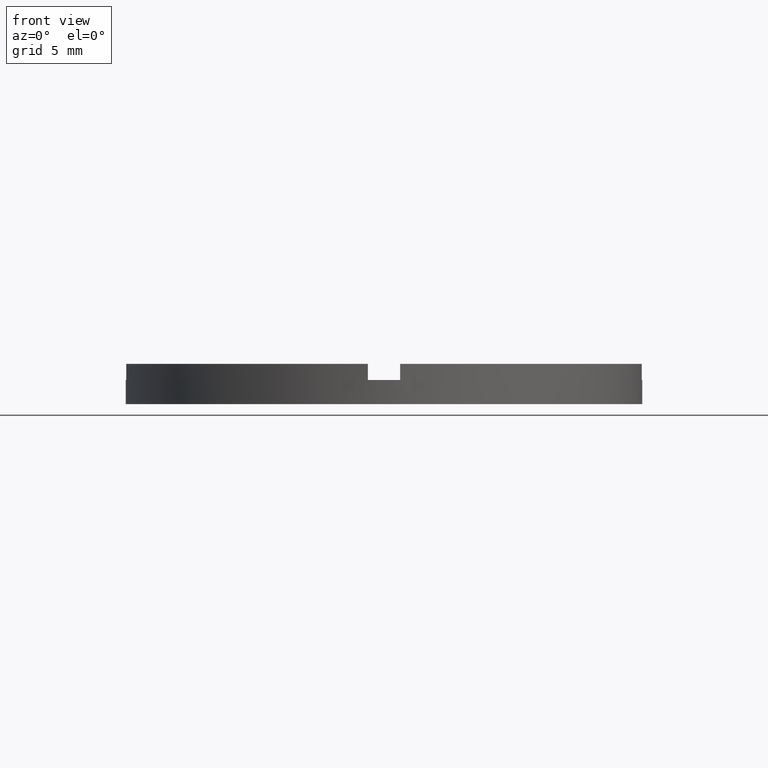
[diagram: clean part render]
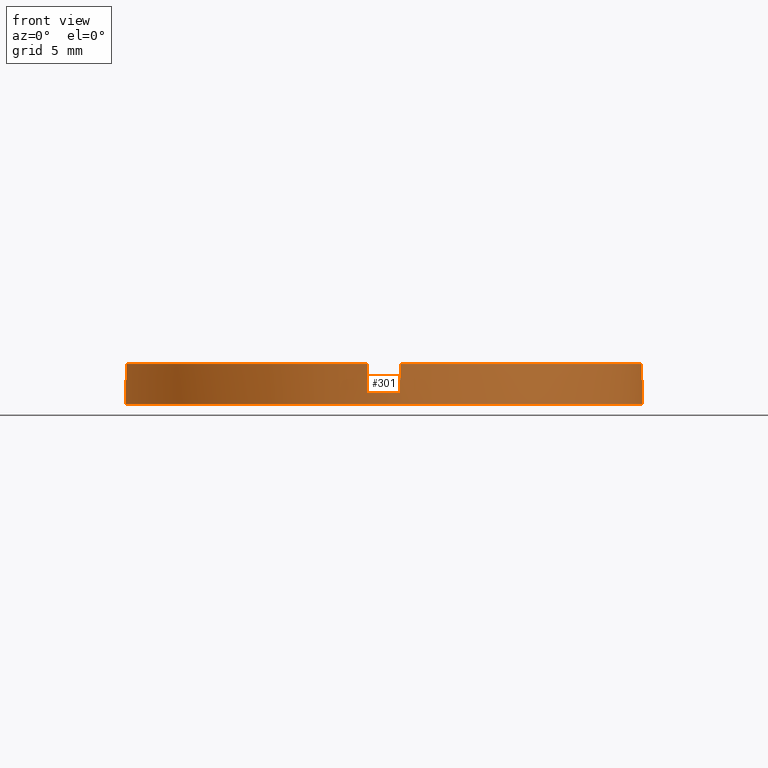
[diagram: same view with one face highlighted and labeled with its STEP entity id]
A machine part, front view. The second image highlights one B-rep face of the part: STEP entity #301.
In plain terms, the highlighted cylindrical surface (partial cylindrical patch) has radius 16 mm, axis along (-0, -0, -1).
Its self-contained STEP definition (entity closure, byte-faithful):
#8 = CARTESIAN_POINT ( 'NONE',  ( 16.00000000000000000, 1.959434878635765131E-15, 1.500000000000000000 ) ) ;
#13 = DIRECTION ( 'NONE',  ( 1.000000000000000000, 0.000000000000000000, 0.000000000000000000 ) ) ;
#16 = CARTESIAN_POINT ( 'NONE',  ( 0.9999999999998373523, -15.96871942267132383, 2.500000000000000000 ) ) ;
#22 = EDGE_CURVE ( 'NONE', #681, #363, #626, .T. ) ;
#30 = DIRECTION ( 'NONE',  ( -0.000000000000000000, -0.000000000000000000, -1.000000000000000000 ) ) ;
#32 = AXIS2_PLACEMENT_3D ( 'NONE', #555, #538, #324 ) ;
#51 = DIRECTION ( 'NONE',  ( 0.000000000000000000, 0.000000000000000000, 1.000000000000000000 ) ) ;
#58 = DIRECTION ( 'NONE',  ( -0.000000000000000000, 0.000000000000000000, 1.000000000000000000 ) ) ;
#59 = CARTESIAN_POINT ( 'NONE',  ( 0.9999999999998373523, -15.96871942267132383, 2.500000000000000000 ) ) ;
#64 = AXIS2_PLACEMENT_3D ( 'NONE', #413, #514, #13 ) ;
#66 = EDGE_CURVE ( 'NONE', #484, #672, #451, .T. ) ;
#67 = CARTESIAN_POINT ( 'NONE',  ( 16.00000000000000000, 1.959434878635765131E-15, 2.500000000000000000 ) ) ;
#70 = DIRECTION ( 'NONE',  ( 0.000000000000000000, 0.000000000000000000, 1.000000000000000000 ) ) ;
#74 = VECTOR ( 'NONE', #596, 1000.000000000000000 ) ;
#77 = DIRECTION ( 'NONE',  ( -1.000000000000000000, 0.000000000000000000, 0.000000000000000000 ) ) ;
#81 = CARTESIAN_POINT ( 'NONE',  ( -15.96871942267130962, -1.000000000000023315, 2.500000000000000000 ) ) ;
#96 = VECTOR ( 'NONE', #51, 1000.000000000000000 ) ;
#97 = LINE ( 'NONE', #400, #635 ) ;
#102 = DIRECTION ( 'NONE',  ( 0.000000000000000000, 0.000000000000000000, 1.000000000000000000 ) ) ;
#106 = EDGE_CURVE ( 'NONE', #337, #330, #97, .T. ) ;
#109 = ORIENTED_EDGE ( 'NONE', *, *, #601, .T. ) ;
#119 = VERTEX_POINT ( 'NONE', #509 ) ;
#138 = ORIENTED_EDGE ( 'NONE', *, *, #22, .T. ) ;
#143 = CIRCLE ( 'NONE', #242, 16.00000000000000000 ) ;
#148 = ORIENTED_EDGE ( 'NONE', *, *, #239, .F. ) ;
#151 = LINE ( 'NONE', #67, #422 ) ;
#152 = VERTEX_POINT ( 'NONE', #693 ) ;
#161 = DIRECTION ( 'NONE',  ( 1.000000000000000000, 0.000000000000000000, 0.000000000000000000 ) ) ;
#164 = FACE_OUTER_BOUND ( 'NONE', #623, .T. ) ;
#176 = ORIENTED_EDGE ( 'NONE', *, *, #66, .F. ) ;
#179 = VERTEX_POINT ( 'NONE', #549 ) ;
#196 = CARTESIAN_POINT ( 'NONE',  ( 15.96871942267130429, -1.000000000000159206, 2.500000000000000000 ) ) ;
#224 = ORIENTED_EDGE ( 'NONE', *, *, #231, .F. ) ;
#231 = EDGE_CURVE ( 'NONE', #337, #363, #355, .T. ) ;
#233 = DIRECTION ( 'NONE',  ( -0.000000000000000000, -0.000000000000000000, -1.000000000000000000 ) ) ;
#239 = EDGE_CURVE ( 'NONE', #408, #494, #143, .T. ) ;
#242 = AXIS2_PLACEMENT_3D ( 'NONE', #279, #102, #525 ) ;
#256 = DIRECTION ( 'NONE',  ( 0.000000000000000000, 0.000000000000000000, 1.000000000000000000 ) ) ;
#257 = AXIS2_PLACEMENT_3D ( 'NONE', #334, #256, #436 ) ;
#272 = CARTESIAN_POINT ( 'NONE',  ( 0.000000000000000000, 0.000000000000000000, 2.500000000000000000 ) ) ;
#279 = CARTESIAN_POINT ( 'NONE',  ( 0.000000000000000000, 0.000000000000000000, 1.500000000000000000 ) ) ;
#297 = CARTESIAN_POINT ( 'NONE',  ( -16.00000000000000000, 0.000000000000000000, 0.000000000000000000 ) ) ;
#301 = ADVANCED_FACE ( 'NONE', ( #164 ), #705, .T. ) ;
#315 = CARTESIAN_POINT ( 'NONE',  ( 15.96871942267130429, -1.000000000000159206, 2.500000000000000000 ) ) ;
#324 = DIRECTION ( 'NONE',  ( 1.000000000000000000, 0.000000000000000000, 0.000000000000000000 ) ) ;
#325 = AXIS2_PLACEMENT_3D ( 'NONE', #272, #70, #161 ) ;
#330 = VERTEX_POINT ( 'NONE', #297 ) ;
#332 = VERTEX_POINT ( 'NONE', #613 ) ;
#333 = EDGE_CURVE ( 'NONE', #484, #332, #702, .T. ) ;
#334 = CARTESIAN_POINT ( 'NONE',  ( 0.000000000000000000, 0.000000000000000000, 2.500000000000000000 ) ) ;
#336 = EDGE_CURVE ( 'NONE', #494, #152, #151, .T. ) ;
#337 = VERTEX_POINT ( 'NONE', #468 ) ;
#347 = ORIENTED_EDGE ( 'NONE', *, *, #336, .F. ) ;
#348 = CARTESIAN_POINT ( 'NONE',  ( -1.000000000000162759, -15.96871942267130073, 2.500000000000000000 ) ) ;
#349 = CIRCLE ( 'NONE', #257, 16.00000000000000000 ) ;
#351 = DIRECTION ( 'NONE',  ( -0.000000000000000000, -0.000000000000000000, -1.000000000000000000 ) ) ;
#355 = CIRCLE ( 'NONE', #64, 16.00000000000000000 ) ;
#361 = DIRECTION ( 'NONE',  ( -0.000000000000000000, -0.000000000000000000, -1.000000000000000000 ) ) ;
#362 = LINE ( 'NONE', #196, #96 ) ;
#363 = VERTEX_POINT ( 'NONE', #438 ) ;
#373 = ORIENTED_EDGE ( 'NONE', *, *, #106, .T. ) ;
#376 = EDGE_CURVE ( 'NONE', #179, #119, #479, .T. ) ;
#384 = ORIENTED_EDGE ( 'NONE', *, *, #396, .F. ) ;
#396 = EDGE_CURVE ( 'NONE', #179, #332, #508, .T. ) ;
#400 = CARTESIAN_POINT ( 'NONE',  ( -16.00000000000000000, 0.000000000000000000, 2.500000000000000000 ) ) ;
#408 = VERTEX_POINT ( 'NONE', #455 ) ;
#410 = ORIENTED_EDGE ( 'NONE', *, *, #771, .F. ) ;
#413 = CARTESIAN_POINT ( 'NONE',  ( 0.000000000000000000, 0.000000000000000000, 1.500000000000000000 ) ) ;
#422 = VECTOR ( 'NONE', #361, 1000.000000000000000 ) ;
#435 = AXIS2_PLACEMENT_3D ( 'NONE', #575, #30, #77 ) ;
#436 = DIRECTION ( 'NONE',  ( 1.000000000000000000, 0.000000000000000000, 0.000000000000000000 ) ) ;
#438 = CARTESIAN_POINT ( 'NONE',  ( -15.96871942267130962, -1.000000000000023315, 1.500000000000000000 ) ) ;
#445 = CARTESIAN_POINT ( 'NONE',  ( 0.000000000000000000, 0.000000000000000000, 1.500000000000000000 ) ) ;
#451 = CIRCLE ( 'NONE', #325, 16.00000000000000000 ) ;
#455 = CARTESIAN_POINT ( 'NONE',  ( 15.96871942267130429, -1.000000000000159206, 1.500000000000000000 ) ) ;
#468 = CARTESIAN_POINT ( 'NONE',  ( -16.00000000000000000, 0.000000000000000000, 1.500000000000000000 ) ) ;
#469 = ORIENTED_EDGE ( 'NONE', *, *, #333, .T. ) ;
#479 = LINE ( 'NONE', #348, #737 ) ;
#484 = VERTEX_POINT ( 'NONE', #16 ) ;
#494 = VERTEX_POINT ( 'NONE', #8 ) ;
#508 = CIRCLE ( 'NONE', #530, 16.00000000000000000 ) ;
#509 = CARTESIAN_POINT ( 'NONE',  ( -1.000000000000162759, -15.96871942267130073, 2.500000000000000000 ) ) ;
#514 = DIRECTION ( 'NONE',  ( 0.000000000000000000, 0.000000000000000000, 1.000000000000000000 ) ) ;
#525 = DIRECTION ( 'NONE',  ( 1.000000000000000000, 0.000000000000000000, 0.000000000000000000 ) ) ;
#530 = AXIS2_PLACEMENT_3D ( 'NONE', #445, #58, #695 ) ;
#535 = CIRCLE ( 'NONE', #32, 16.00000000000000000 ) ;
#538 = DIRECTION ( 'NONE',  ( 0.000000000000000000, 0.000000000000000000, 1.000000000000000000 ) ) ;
#549 = CARTESIAN_POINT ( 'NONE',  ( -1.000000000000162759, -15.96871942267130073, 1.500000000000000000 ) ) ;
#554 = CARTESIAN_POINT ( 'NONE',  ( -15.96871942267130962, -1.000000000000023315, 2.500000000000000000 ) ) ;
#555 = CARTESIAN_POINT ( 'NONE',  ( 0.000000000000000000, 0.000000000000000000, 0.000000000000000000 ) ) ;
#568 = DIRECTION ( 'NONE',  ( 0.000000000000000000, 0.000000000000000000, 1.000000000000000000 ) ) ;
#575 = CARTESIAN_POINT ( 'NONE',  ( 0.000000000000000000, 0.000000000000000000, 2.500000000000000000 ) ) ;
#596 = DIRECTION ( 'NONE',  ( -0.000000000000000000, -0.000000000000000000, -1.000000000000000000 ) ) ;
#601 = EDGE_CURVE ( 'NONE', #330, #152, #535, .T. ) ;
#613 = CARTESIAN_POINT ( 'NONE',  ( 0.9999999999998373523, -15.96871942267132383, 1.500000000000000000 ) ) ;
#623 = EDGE_LOOP ( 'NONE', ( #347, #148, #721, #176, #469, #384, #668, #410, #138, #224, #373, #109 ) ) ;
#626 = LINE ( 'NONE', #554, #74 ) ;
#635 = VECTOR ( 'NONE', #233, 1000.000000000000000 ) ;
#668 = ORIENTED_EDGE ( 'NONE', *, *, #376, .T. ) ;
#672 = VERTEX_POINT ( 'NONE', #315 ) ;
#681 = VERTEX_POINT ( 'NONE', #81 ) ;
#691 = VECTOR ( 'NONE', #351, 1000.000000000000000 ) ;
#693 = CARTESIAN_POINT ( 'NONE',  ( 16.00000000000000000, 1.959434878635765131E-15, 0.000000000000000000 ) ) ;
#695 = DIRECTION ( 'NONE',  ( 1.000000000000000000, 0.000000000000000000, 0.000000000000000000 ) ) ;
#702 = LINE ( 'NONE', #59, #691 ) ;
#705 = CYLINDRICAL_SURFACE ( 'NONE', #435, 16.00000000000000000 ) ;
#721 = ORIENTED_EDGE ( 'NONE', *, *, #783, .T. ) ;
#737 = VECTOR ( 'NONE', #568, 1000.000000000000000 ) ;
#771 = EDGE_CURVE ( 'NONE', #681, #119, #349, .T. ) ;
#783 = EDGE_CURVE ( 'NONE', #408, #672, #362, .T. ) ;